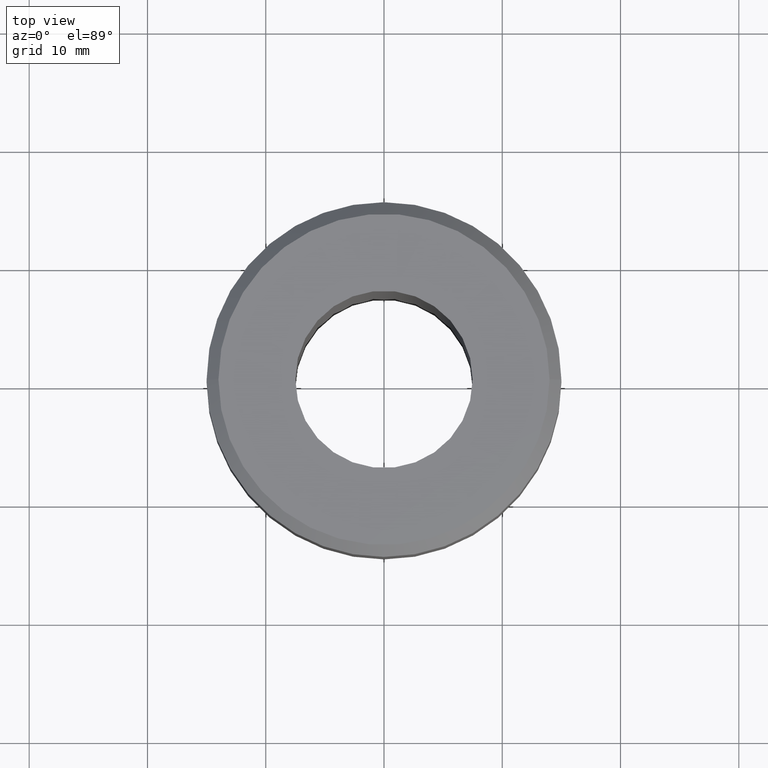
[diagram: clean part render]
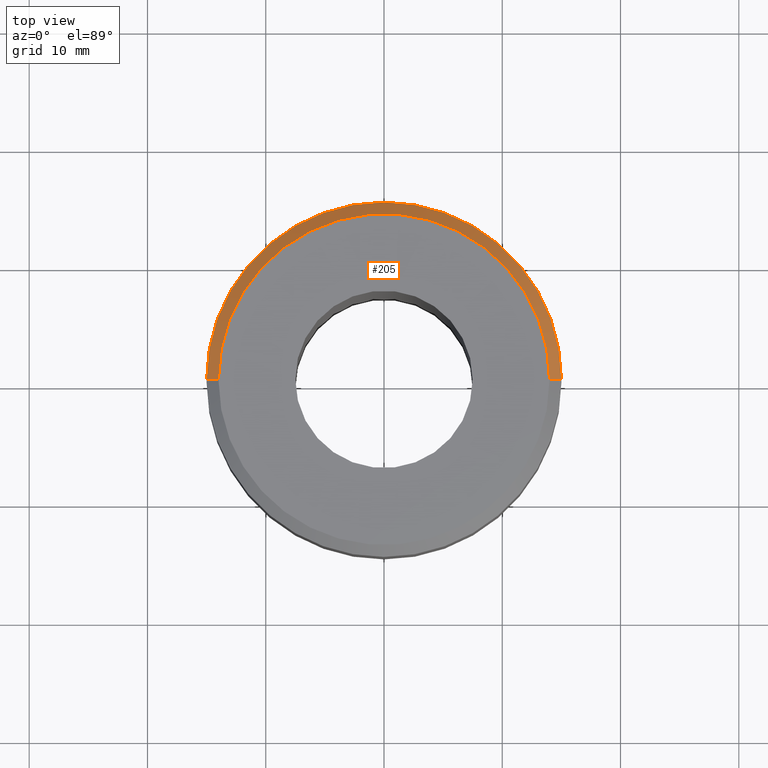
[diagram: same view with one face highlighted and labeled with its STEP entity id]
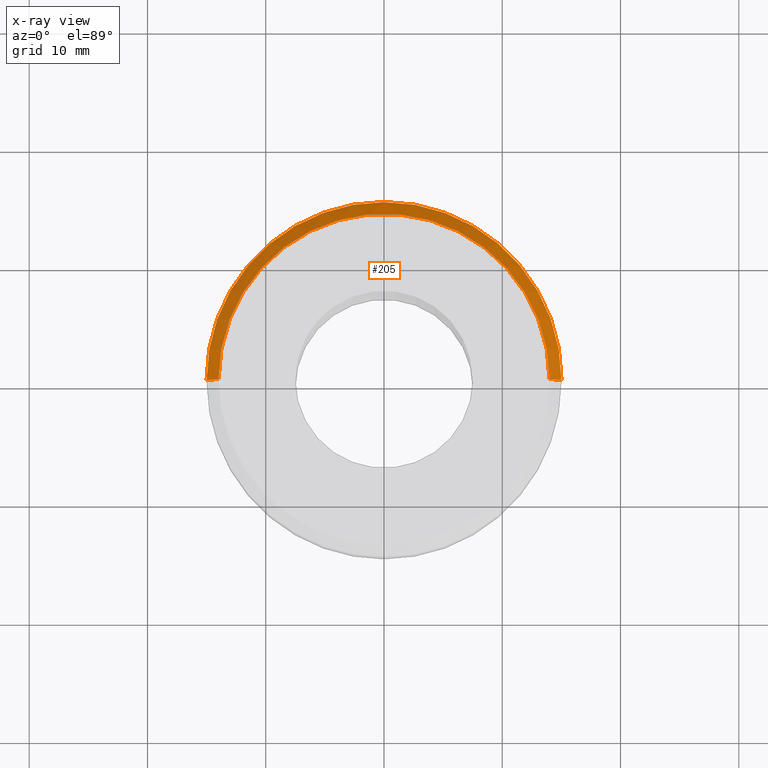
[diagram: x-ray of the same camera — body ghosted, the highlighted face saturated]
A machine part, top view. The second image highlights one B-rep face of the part: STEP entity #205.
The next image is the same camera in x-ray: the body ghosted, the highlighted face saturated — about 0% of this face is hidden behind the body in this view.
In plain terms, the highlighted conical surface has half-angle 45 deg.
Its self-contained STEP definition (entity closure, byte-faithful):
#8 = VECTOR ( 'NONE', #476, 999.9999999999998863 ) ;
#11 = EDGE_LOOP ( 'NONE', ( #198, #740, #411, #762 ) ) ;
#23 = EDGE_CURVE ( 'NONE', #246, #225, #57, .T. ) ;
#57 = CIRCLE ( 'NONE', #602, 13.99999999999999112 ) ;
#85 = DIRECTION ( 'NONE',  ( 1.000000000000000000, 0.000000000000000000, 0.000000000000000000 ) ) ;
#92 = EDGE_CURVE ( 'NONE', #225, #260, #444, .T. ) ;
#152 = AXIS2_PLACEMENT_3D ( 'NONE', #156, #564, #85 ) ;
#156 = CARTESIAN_POINT ( 'NONE',  ( 0.000000000000000000, 0.000000000000000000, -1.000000000000004441 ) ) ;
#159 = EDGE_CURVE ( 'NONE', #246, #736, #362, .T. ) ;
#182 = CARTESIAN_POINT ( 'NONE',  ( 13.99999999999999112, 1.775737858763661226E-15, 0.000000000000000000 ) ) ;
#187 = DIRECTION ( 'NONE',  ( 0.000000000000000000, 0.000000000000000000, -1.000000000000000000 ) ) ;
#198 = ORIENTED_EDGE ( 'NONE', *, *, #23, .F. ) ;
#205 = ADVANCED_FACE ( 'NONE', ( #659 ), #253, .T. ) ;
#225 = VERTEX_POINT ( 'NONE', #426 ) ;
#235 = CARTESIAN_POINT ( 'NONE',  ( -14.99999999999999822, 1.836970198721029589E-15, -1.000000000000004441 ) ) ;
#246 = VERTEX_POINT ( 'NONE', #182 ) ;
#253 = CONICAL_SURFACE ( 'NONE', #450, 13.99999999999999112, 0.7853981633974491672 ) ;
#260 = VERTEX_POINT ( 'NONE', #235 ) ;
#336 = EDGE_CURVE ( 'NONE', #260, #736, #373, .T. ) ;
#356 = VECTOR ( 'NONE', #627, 999.9999999999998863 ) ;
#362 = LINE ( 'NONE', #414, #8 ) ;
#373 = CIRCLE ( 'NONE', #152, 14.99999999999999822 ) ;
#382 = CARTESIAN_POINT ( 'NONE',  ( -13.99999999999999112, 0.000000000000000000, 0.000000000000000000 ) ) ;
#398 = DIRECTION ( 'NONE',  ( -0.000000000000000000, -0.000000000000000000, 1.000000000000000000 ) ) ;
#402 = DIRECTION ( 'NONE',  ( 1.000000000000000000, 0.000000000000000000, 0.000000000000000000 ) ) ;
#408 = CARTESIAN_POINT ( 'NONE',  ( 0.000000000000000000, 0.000000000000000000, 0.000000000000000000 ) ) ;
#411 = ORIENTED_EDGE ( 'NONE', *, *, #336, .F. ) ;
#414 = CARTESIAN_POINT ( 'NONE',  ( 13.99999999999999112, 1.714505518806293455E-15, 0.000000000000000000 ) ) ;
#426 = CARTESIAN_POINT ( 'NONE',  ( -13.99999999999999112, 0.000000000000000000, 0.000000000000000000 ) ) ;
#444 = LINE ( 'NONE', #382, #356 ) ;
#450 = AXIS2_PLACEMENT_3D ( 'NONE', #408, #187, #540 ) ;
#476 = DIRECTION ( 'NONE',  ( 0.7071067811865482389, 8.659560562354941486E-17, -0.7071067811865469066 ) ) ;
#540 = DIRECTION ( 'NONE',  ( -1.000000000000000000, 0.000000000000000000, 0.000000000000000000 ) ) ;
#564 = DIRECTION ( 'NONE',  ( 0.000000000000000000, 0.000000000000000000, -1.000000000000000000 ) ) ;
#565 = CARTESIAN_POINT ( 'NONE',  ( 14.99999999999999822, 0.000000000000000000, -1.000000000000004441 ) ) ;
#602 = AXIS2_PLACEMENT_3D ( 'NONE', #693, #398, #402 ) ;
#627 = DIRECTION ( 'NONE',  ( -0.7071067811865482389, 0.000000000000000000, -0.7071067811865469066 ) ) ;
#659 = FACE_OUTER_BOUND ( 'NONE', #11, .T. ) ;
#693 = CARTESIAN_POINT ( 'NONE',  ( 0.000000000000000000, 0.000000000000000000, 0.000000000000000000 ) ) ;
#736 = VERTEX_POINT ( 'NONE', #565 ) ;
#740 = ORIENTED_EDGE ( 'NONE', *, *, #159, .T. ) ;
#762 = ORIENTED_EDGE ( 'NONE', *, *, #92, .F. ) ;